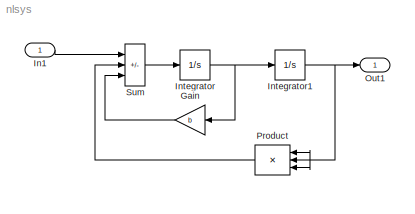
MODEL nlsys
KIND model
CONFIG AbsTol = auto
CONFIG FixedStep = auto
CONFIG MaxStep = auto
CONFIG MinStep = auto
CONFIG RelTol = 1e-3
CONFIG Solver = ode45
CONFIG SolverMode = Auto
CONFIG StartTime = 0.0
CONFIG StopTime = 10.0
BLOCK [Gain] Gain
  Gain = b
  Multiplication = Element-wise(K.*u)
  SaturateOnIntegerOverflow = on
BLOCK [Inport] In1
  Interpolate = on
  LatchInput = off
  Port = 1
BLOCK [Integrator] Integrator
  AbsoluteTolerance = auto
  ExternalReset = none
  InitialCondition = x0(2)
  InitialConditionSource = internal
  LimitOutput = off
  LowerSaturationLimit = -inf
  Ports = [1, 1]
  ShowSaturationPort = off
  ShowStatePort = off
  UpperSaturationLimit = inf
BLOCK [Integrator] Integrator1
  AbsoluteTolerance = auto
  ExternalReset = none
  InitialCondition = x0(1)
  InitialConditionSource = internal
  LimitOutput = off
  LowerSaturationLimit = -inf
  Ports = [1, 1]
  ShowSaturationPort = off
  ShowStatePort = off
  UpperSaturationLimit = inf
BLOCK [Outport] Out1
  InitialOutput = []
  OutputWhenDisabled = held
  Port = 1
BLOCK [Product] Product
  Inputs = 3
  Multiplication = Element-wise(.*)
  Ports = [3, 1]
  SaturateOnIntegerOverflow = on
BLOCK [Sum] Sum
  IconShape = rectangular
  Inputs = +--
  Ports = [3, 1]
  SaturateOnIntegerOverflow = on
LINE Gain:1 -> Sum:3
LINE In1:1 -> Sum:1
NET Integrator1:1 -> Out1:1, Product:1, Product:2, Product:3
NET Integrator:1 -> Gain:1, Integrator1:1
LINE Product:1 -> Sum:2
LINE Sum:1 -> Integrator:1
note: NET lines group one-source signal fan-out (src -> all destinations, sorted); 1:1 wires keep LINE
